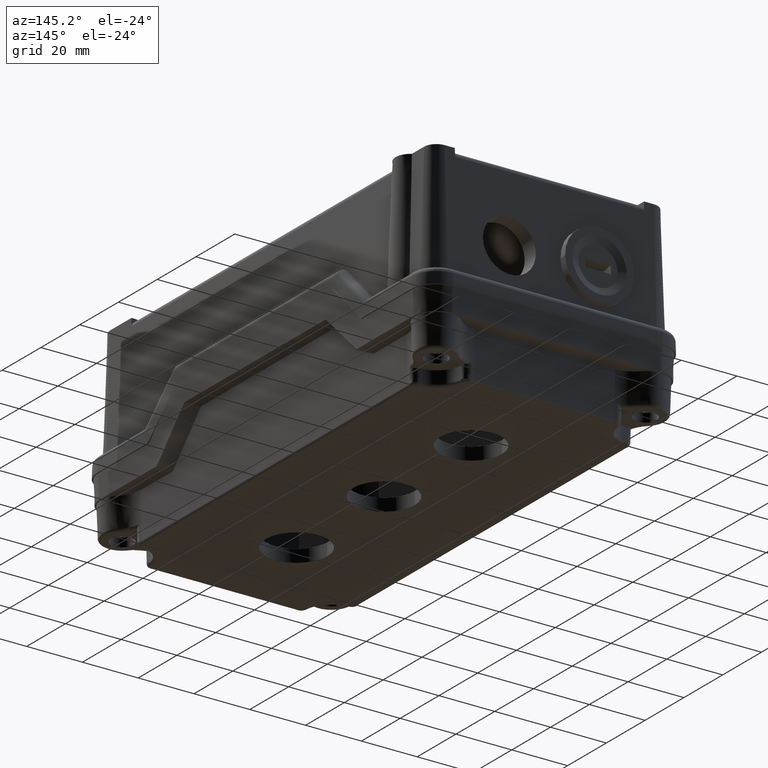
[diagram: clean part render]
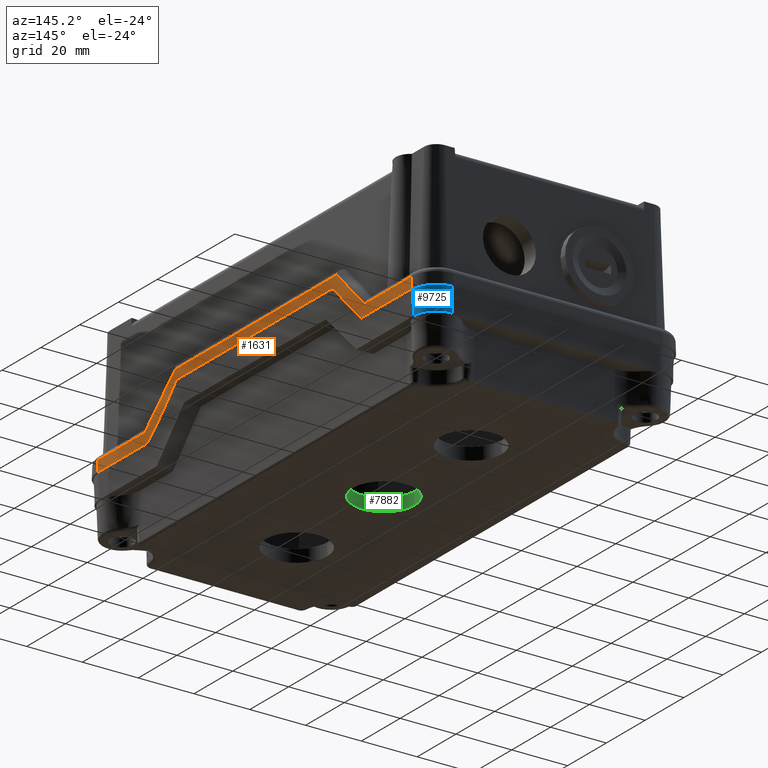
[diagram: same view with three faces highlighted in distinct colors, each labeled with its STEP entity id]
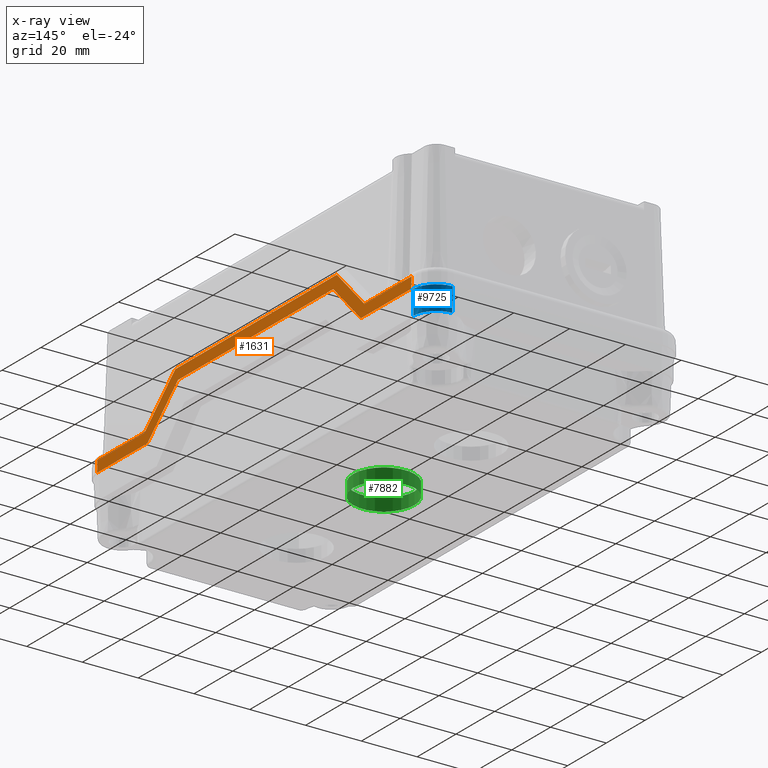
[diagram: x-ray of the same camera — body ghosted, the three highlighted faces saturated]
A machine part, auxiliary view with three faces highlighted in distinct colors.
The next image is the same camera in x-ray (body ghosted, the three faces saturated) — at least one of them is partly hidden behind the body in this view.
Their STEP definitions:

[orange] entity #1631 — the highlighted planar face has unit normal (0.9994, 0, 0.0349).
#878=CARTESIAN_POINT('',(77.742971050357937,-17.900412990563552,4.069798993404999));
#879=VERTEX_POINT('',#878);
#887=CARTESIAN_POINT('',(77.742971050357937,6.427145059944048,4.069798993405014));
#888=VERTEX_POINT('',#887);
#889=CARTESIAN_POINT('',(77.742971050357937,-17.900412990563552,4.069798993404999));
#890=DIRECTION('',(0.0,1.0,0.0));
#891=VECTOR('',#890,24.327558050507601);
#892=LINE('',#889,#891);
#893=EDGE_CURVE('',#879,#888,#892,.T.);
#928=CARTESIAN_POINT('',(77.218615173503110,21.442732759944043,19.085386693404985));
#929=VERTEX_POINT('',#928);
#937=CARTESIAN_POINT('',(77.218615173503110,104.756441258928850,19.085386693404981));
#938=VERTEX_POINT('',#937);
#939=CARTESIAN_POINT('',(77.218615173503110,21.442732759944043,19.085386693404985));
#940=DIRECTION('',(0.0,1.0,0.0));
#941=VECTOR('',#940,83.313708498984795);
#942=LINE('',#939,#941);
#943=EDGE_CURVE('',#929,#938,#942,.T.);
#978=CARTESIAN_POINT('',(77.742971050357937,119.772028958928810,4.069798993404998));
#979=VERTEX_POINT('',#978);
#980=CARTESIAN_POINT('',(77.218615173503110,104.756441258928850,19.085386693404981));
#981=DIRECTION('',(0.024685188407832,0.706891307583163,-0.706891307583164));
#982=VECTOR('',#981,21.241720670378221);
#983=LINE('',#980,#982);
#984=EDGE_CURVE('',#938,#979,#983,.T.);
#1046=CARTESIAN_POINT('',(77.742971050357937,144.099587009436500,4.069798993404999));
#1047=VERTEX_POINT('',#1046);
#1048=CARTESIAN_POINT('',(77.742971050357937,119.772028958928810,4.069798993404998));
#1049=DIRECTION('',(0.0,1.0,0.0));
#1050=VECTOR('',#1049,24.327558050507690);
#1051=LINE('',#1048,#1050);
#1052=EDGE_CURVE('',#979,#1047,#1051,.T.);
#1129=CARTESIAN_POINT('',(77.742971050357937,6.427145059944048,4.069798993405014));
#1130=DIRECTION('',(-0.024685188407832,0.706891307583164,0.706891307583163));
#1131=VECTOR('',#1130,21.241720670378228);
#1132=LINE('',#1129,#1131);
#1133=EDGE_CURVE('',#888,#929,#1132,.T.);
#1553=CARTESIAN_POINT('',(77.885091562884384,144.099587009436500,0.0));
#1554=VERTEX_POINT('',#1553);
#1555=CARTESIAN_POINT('',(77.885091562884384,144.099587009436500,0.0));
#1556=DIRECTION('',(-0.034899496702502,0.0,0.999390827019096));
#1557=VECTOR('',#1556,4.072279716178779);
#1558=LINE('',#1555,#1557);
#1559=EDGE_CURVE('',#1554,#1047,#1558,.T.);
#1572=CARTESIAN_POINT('',(77.885091562884384,144.099587009436500,0.0));
#1573=DIRECTION('',(0.999390827019096,0.0,0.034899496702501));
#1574=DIRECTION('',(0.0,1.0,0.0));
#1575=AXIS2_PLACEMENT_3D('',#1572,#1573,#1574);
#1576=PLANE('',#1575);
#1577=ORIENTED_EDGE('',*,*,#1052,.F.);
#1578=ORIENTED_EDGE('',*,*,#984,.F.);
#1579=ORIENTED_EDGE('',*,*,#943,.F.);
#1580=ORIENTED_EDGE('',*,*,#1133,.F.);
#1581=ORIENTED_EDGE('',*,*,#893,.F.);
#1582=CARTESIAN_POINT('',(77.885091562884384,-17.900412990563552,0.0));
#1583=VERTEX_POINT('',#1582);
#1584=CARTESIAN_POINT('',(77.885091562884384,-17.900412990563552,0.0));
#1585=DIRECTION('',(-0.034899496702502,0.0,0.999390827019096));
#1586=VECTOR('',#1585,4.072279716178779);
#1587=LINE('',#1584,#1586);
#1588=EDGE_CURVE('',#1583,#879,#1587,.T.);
#1589=ORIENTED_EDGE('',*,*,#1588,.F.);
#1590=CARTESIAN_POINT('',(77.885091562884384,8.083999309436422,-4.440892E-015));
#1591=VERTEX_POINT('',#1590);
#1592=CARTESIAN_POINT('',(77.885091562884384,-17.900412990563552,0.0));
#1593=DIRECTION('',(0.0,1.0,0.0));
#1594=VECTOR('',#1593,25.984412299999974);
#1595=LINE('',#1592,#1594);
#1596=EDGE_CURVE('',#1583,#1591,#1595,.T.);
#1597=ORIENTED_EDGE('',*,*,#1596,.T.);
#1598=CARTESIAN_POINT('',(77.360735686027624,23.099587009436409,15.015587699999973));
#1599=VERTEX_POINT('',#1598);
#1600=CARTESIAN_POINT('',(77.885091562884384,8.083999309436422,-4.440892E-015));
#1601=DIRECTION('',(-0.024685188407923,0.706891307583162,0.706891307583162));
#1602=VECTOR('',#1601,21.241720670378275);
#1603=LINE('',#1600,#1602);
#1604=EDGE_CURVE('',#1591,#1599,#1603,.T.);
#1605=ORIENTED_EDGE('',*,*,#1604,.T.);
#1606=CARTESIAN_POINT('',(77.360735686027709,103.099587009436460,15.015587699999982));
#1607=VERTEX_POINT('',#1606);
#1608=CARTESIAN_POINT('',(77.360735686027624,23.099587009436409,15.015587699999973));
#1609=DIRECTION('',(0.0,1.0,0.0));
#1610=VECTOR('',#1609,80.000000000000057);
#1611=LINE('',#1608,#1610);
#1612=EDGE_CURVE('',#1599,#1607,#1611,.T.);
#1613=ORIENTED_EDGE('',*,*,#1612,.T.);
#1614=CARTESIAN_POINT('',(77.885091562884384,118.115174709436470,5.551115E-015));
#1615=VERTEX_POINT('',#1614);
#1616=CARTESIAN_POINT('',(77.360735686027709,103.099587009436460,15.015587699999982));
#1617=DIRECTION('',(0.024685188407919,0.706891307583163,-0.706891307583161));
#1618=VECTOR('',#1617,21.241720670378292);
#1619=LINE('',#1616,#1618);
#1620=EDGE_CURVE('',#1607,#1615,#1619,.T.);
#1621=ORIENTED_EDGE('',*,*,#1620,.T.);
#1622=CARTESIAN_POINT('',(77.885091562884384,118.115174709436470,5.551115E-015));
#1623=DIRECTION('',(0.0,1.0,0.0));
#1624=VECTOR('',#1623,25.984412300000031);
#1625=LINE('',#1622,#1624);
#1626=EDGE_CURVE('',#1615,#1554,#1625,.T.);
#1627=ORIENTED_EDGE('',*,*,#1626,.T.);
#1628=ORIENTED_EDGE('',*,*,#1559,.T.);
#1629=EDGE_LOOP('',(#1577,#1578,#1579,#1580,#1581,#1589,#1597,#1605,#1613,#1621,#1627,#1628));
#1630=FACE_OUTER_BOUND('',#1629,.T.);
#1631=ADVANCED_FACE('',(#1630),#1576,.T.);

[blue] entity #9725 — the highlighted conical surface has half-angle 2 deg.
#9004=CARTESIAN_POINT('',(0.283278526198742,102.881467036110830,23.499999999999979));
#9005=VERTEX_POINT('',#9004);
#9012=CARTESIAN_POINT('',(-7.896083390745201,94.702105119166902,23.499999999999979));
#9013=VERTEX_POINT('',#9012);
#9014=CARTESIAN_POINT('',(0.283278526198740,94.702105119166902,23.499999999999979));
#9015=DIRECTION('',(0.0,0.0,-1.0));
#9016=DIRECTION('',(0.0,1.0,0.0));
#9017=AXIS2_PLACEMENT_3D('',#9014,#9015,#9016);
#9018=CIRCLE('',#9017,8.179361916943950);
#9019=EDGE_CURVE('',#9013,#9005,#9018,.T.);
#9316=CARTESIAN_POINT('',(-8.192909931425053,94.702105119166902,15.000000000000009));
#9317=VERTEX_POINT('',#9316);
#9324=CARTESIAN_POINT('',(0.283278526198741,103.178293576790680,15.000000000000009));
#9325=VERTEX_POINT('',#9324);
#9326=CARTESIAN_POINT('',(0.283278526198740,94.702105119166902,15.000000000000018));
#9327=DIRECTION('',(0.0,0.0,1.0));
#9328=DIRECTION('',(0.0,1.0,0.0));
#9329=AXIS2_PLACEMENT_3D('',#9326,#9327,#9328);
#9330=CIRCLE('',#9329,8.476188457623804);
#9331=EDGE_CURVE('',#9325,#9317,#9330,.T.);
#9478=CARTESIAN_POINT('',(-8.192909931425053,94.702105119166902,15.000000000000009));
#9479=DIRECTION('',(0.034899496702501,0.0,0.999390827019096));
#9480=VECTOR('',#9479,8.505181126539954);
#9481=LINE('',#9478,#9480);
#9482=EDGE_CURVE('',#9317,#9013,#9481,.T.);
#9709=CARTESIAN_POINT('',(0.283278526198740,94.702105119166902,0.0));
#9710=DIRECTION('',(0.0,0.0,-1.0));
#9711=DIRECTION('',(0.0,1.0,0.0));
#9712=AXIS2_PLACEMENT_3D('',#9709,#9710,#9711);
#9713=CONICAL_SURFACE('',#9712,9.000000000000021,2.0);
#9714=ORIENTED_EDGE('',*,*,#9331,.T.);
#9715=ORIENTED_EDGE('',*,*,#9482,.T.);
#9716=ORIENTED_EDGE('',*,*,#9019,.T.);
#9717=CARTESIAN_POINT('',(0.283278526198741,103.178293576790680,15.000000000000009));
#9718=DIRECTION('',(5.874071E-017,-0.034899496702500,0.999390827019096));
#9719=VECTOR('',#9718,8.505181126539954);
#9720=LINE('',#9717,#9719);
#9721=EDGE_CURVE('',#9325,#9005,#9720,.T.);
#9722=ORIENTED_EDGE('',*,*,#9721,.F.);
#9723=EDGE_LOOP('',(#9714,#9715,#9716,#9722));
#9724=FACE_OUTER_BOUND('',#9723,.T.);
#9725=ADVANCED_FACE('',(#9724),#9713,.T.);

[green] entity #7882 — the highlighted cylindrical surface (bore or boss wall) has radius 11 mm, axis along (-0, -0, 1).
#7820=CARTESIAN_POINT('',(48.783278526198814,13.702313954751098,40.500000000000000));
#7821=VERTEX_POINT('',#7820);
#7822=CARTESIAN_POINT('',(37.783278526198806,13.702313954751094,40.500000000000000));
#7823=DIRECTION('',(0.0,0.0,-1.0));
#7824=DIRECTION('',(-1.0,0.0,0.0));
#7825=AXIS2_PLACEMENT_3D('',#7822,#7823,#7824);
#7826=CIRCLE('',#7825,11.0);
#7827=EDGE_CURVE('',#7821,#7821,#7826,.T.);
#7863=CARTESIAN_POINT('',(37.783278526198806,13.702313954751094,40.500000000000000));
#7864=DIRECTION('',(0.0,0.0,-1.0));
#7865=DIRECTION('',(-1.0,0.0,0.0));
#7866=AXIS2_PLACEMENT_3D('',#7863,#7864,#7865);
#7867=CYLINDRICAL_SURFACE('',#7866,11.0);
#7868=CARTESIAN_POINT('',(48.783278526198814,13.702313954751098,36.0));
#7869=VERTEX_POINT('',#7868);
#7870=CARTESIAN_POINT('',(37.783278526198806,13.702313954751094,36.0));
#7871=DIRECTION('',(0.0,0.0,1.0));
#7872=DIRECTION('',(-1.0,0.0,0.0));
#7873=AXIS2_PLACEMENT_3D('',#7870,#7871,#7872);
#7874=CIRCLE('',#7873,11.0);
#7875=EDGE_CURVE('',#7869,#7869,#7874,.T.);
#7876=ORIENTED_EDGE('',*,*,#7875,.F.);
#7877=EDGE_LOOP('',(#7876));
#7878=FACE_OUTER_BOUND('',#7877,.T.);
#7879=ORIENTED_EDGE('',*,*,#7827,.F.);
#7880=EDGE_LOOP('',(#7879));
#7881=FACE_BOUND('',#7880,.T.);
#7882=ADVANCED_FACE('',(#7878,#7881),#7867,.F.);